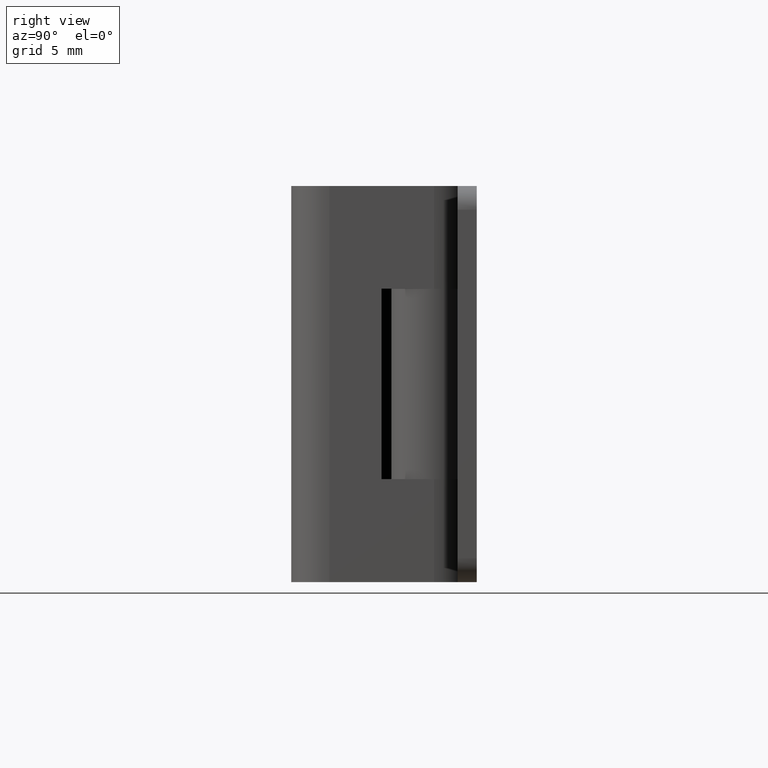
[diagram: clean part render]
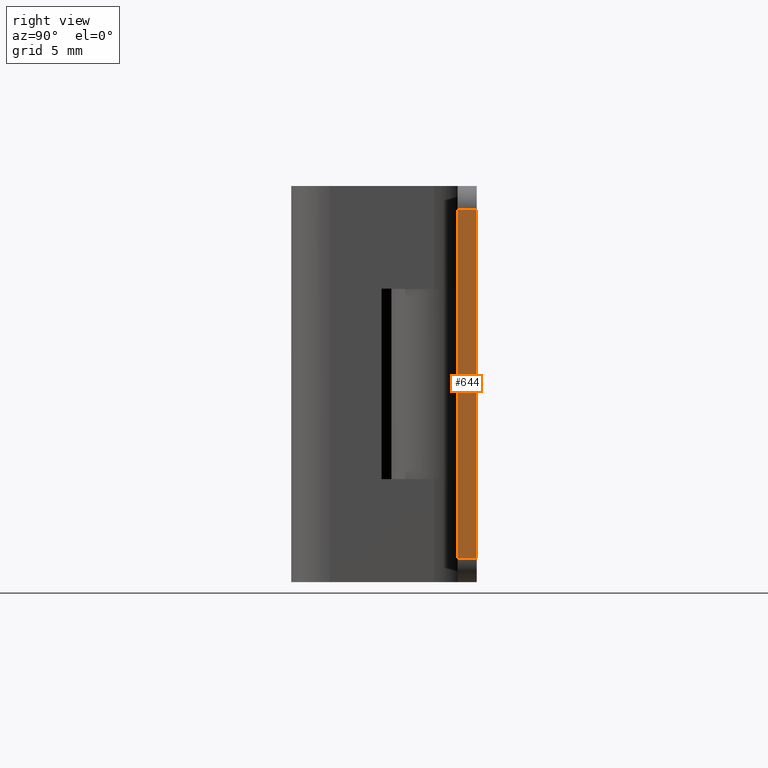
[diagram: same view with one face highlighted and labeled with its STEP entity id]
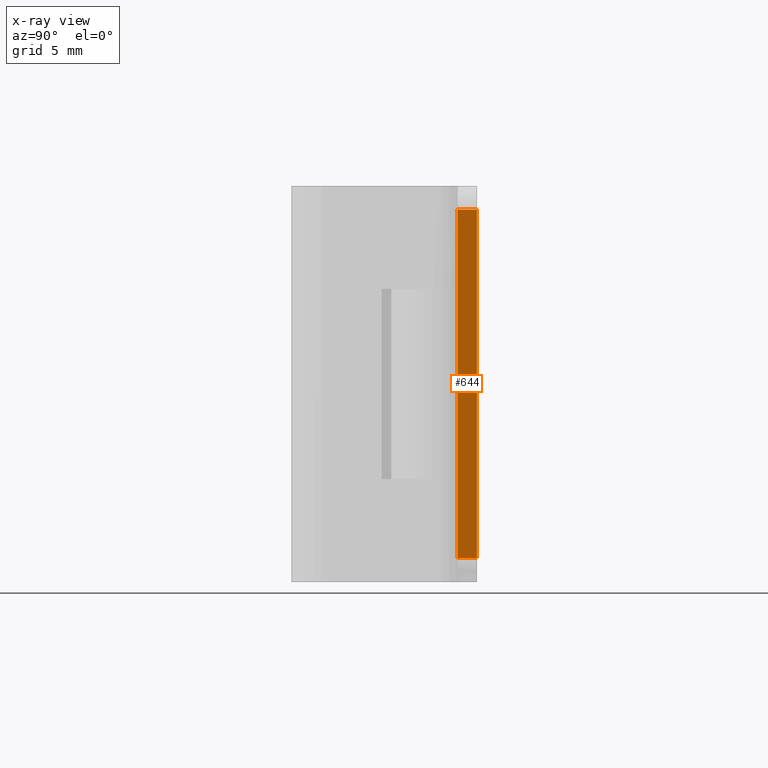
[diagram: x-ray of the same camera — body ghosted, the highlighted face saturated]
A machine part, right view. The second image highlights one B-rep face of the part: STEP entity #644.
The next image is the same camera in x-ray: the body ghosted, the highlighted face saturated — about 0% of this face is hidden behind the body in this view.
In plain terms, the highlighted face is a freeform B-spline surface patch.
Its self-contained STEP definition (entity closure, byte-faithful):
#517=CARTESIAN_POINT('',(13.0,1.500000000000000,23.500006999999901));
#518=VERTEX_POINT('',#517);
#534=CARTESIAN_POINT('',(13.0,2.700001000000000,23.500006999999901));
#535=VERTEX_POINT('',#534);
#536=CARTESIAN_POINT('',(13.0,2.700001000000000,23.500006999999901));
#537=CARTESIAN_POINT('',(13.0,1.500000000000000,23.500006999999901));
#538=QUASI_UNIFORM_CURVE('',1,(#536,#537),.UNSPECIFIED.,.F.,.U.);
#539=EDGE_CURVE('',#535,#518,#538,.T.);
#580=CARTESIAN_POINT('',(13.0,1.500000000000000,1.499999999999946));
#581=VERTEX_POINT('',#580);
#602=CARTESIAN_POINT('',(13.0,2.700001000000000,1.499999999999946));
#603=VERTEX_POINT('',#602);
#617=CARTESIAN_POINT('',(13.0,1.500000000000000,1.499999999999946));
#618=CARTESIAN_POINT('',(13.0,2.700001000000000,1.499999999999946));
#619=QUASI_UNIFORM_CURVE('',1,(#617,#618),.UNSPECIFIED.,.F.,.U.);
#620=EDGE_CURVE('',#581,#603,#619,.T.);
#625=CARTESIAN_POINT('',(13.0,1.440059952375835,24.598908133090919));
#626=CARTESIAN_POINT('',(13.0,1.440059952375835,0.401099063604319));
#627=CARTESIAN_POINT('',(13.0,2.759941079810700,24.598908133090919));
#628=CARTESIAN_POINT('',(13.0,2.759941079810700,0.401099063604319));
#629=B_SPLINE_SURFACE_WITH_KNOTS('',1,1,((#625,#627),(#626,#628)),.UNSPECIFIED.,.F.,.F.,.U.,(2,2),(2,2),(0.0,24.197809069486599),(0.041708334948495,0.958291687403247),.UNSPECIFIED.);
#630=CARTESIAN_POINT('',(13.0,1.500000000000000,1.499999999999946));
#631=CARTESIAN_POINT('',(13.0,1.500000000000000,23.500006999999901));
#632=QUASI_UNIFORM_CURVE('',1,(#630,#631),.UNSPECIFIED.,.F.,.U.);
#633=EDGE_CURVE('',#581,#518,#632,.T.);
#634=ORIENTED_EDGE('',*,*,#633,.F.);
#635=ORIENTED_EDGE('',*,*,#620,.T.);
#636=CARTESIAN_POINT('',(13.0,2.700001000000000,1.499999999999946));
#637=CARTESIAN_POINT('',(13.0,2.700001000000000,23.500006999999901));
#638=QUASI_UNIFORM_CURVE('',1,(#636,#637),.UNSPECIFIED.,.F.,.U.);
#639=EDGE_CURVE('',#603,#535,#638,.T.);
#640=ORIENTED_EDGE('',*,*,#639,.T.);
#641=ORIENTED_EDGE('',*,*,#539,.T.);
#642=EDGE_LOOP('',(#634,#635,#640,#641));
#643=FACE_OUTER_BOUND('',#642,.T.);
#644=ADVANCED_FACE('',(#643),#629,.T.);